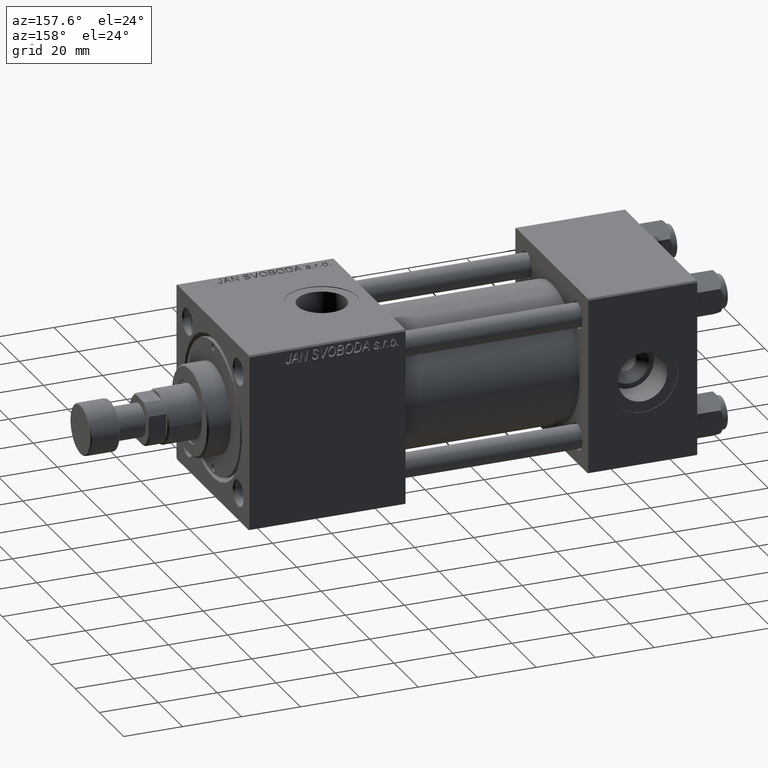
[diagram: clean part render]
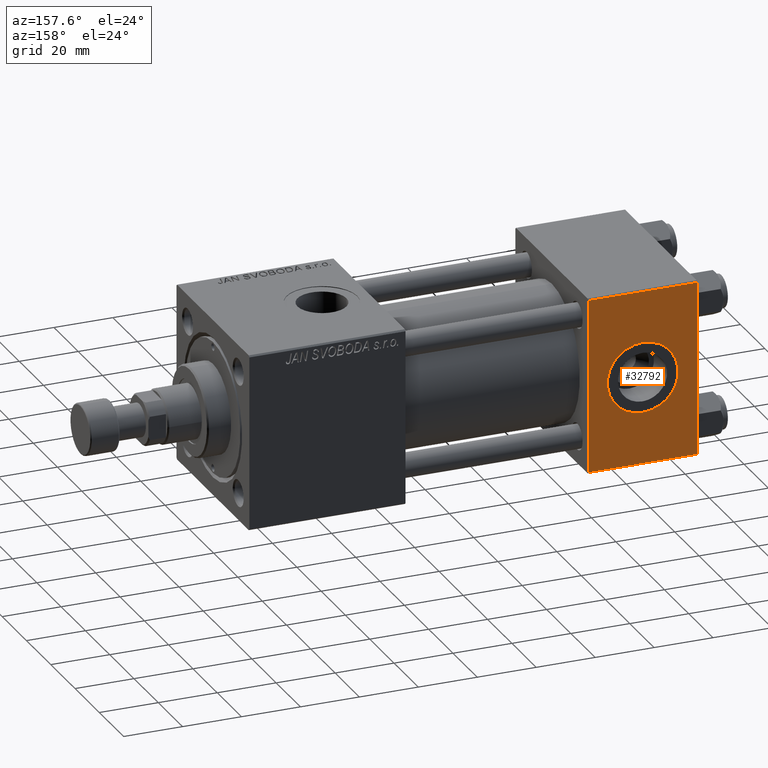
[diagram: same view with one face highlighted and labeled with its STEP entity id]
A machine part, auxiliary view. The second image highlights one B-rep face of the part: STEP entity #32792.
In plain terms, the highlighted planar face has unit normal (0, 1, 0).
Its self-contained STEP definition (entity closure, byte-faithful):
#167 = CARTESIAN_POINT ( 'NONE',  ( 37.00000000000000000, 29.99999999999999289, 30.00000000000000000 ) ) ;
#1000 = VERTEX_POINT ( 'NONE', #25185 ) ;
#2087 = VECTOR ( 'NONE', #15923, 1000.000000000000000 ) ;
#2993 = VECTOR ( 'NONE', #18116, 1000.000000000000000 ) ;
#3806 = EDGE_CURVE ( 'NONE', #12019, #48899, #44495, .T. ) ;
#6237 = ORIENTED_EDGE ( 'NONE', *, *, #3806, .T. ) ;
#6300 = VERTEX_POINT ( 'NONE', #7524 ) ;
#6732 = DIRECTION ( 'NONE',  ( 0.000000000000000000, 0.000000000000000000, 1.000000000000000000 ) ) ;
#6758 = AXIS2_PLACEMENT_3D ( 'NONE', #47583, #35287, #6732 ) ;
#7233 = CARTESIAN_POINT ( 'NONE',  ( 37.00000000000000000, 29.99999999999999289, -29.50000000000000000 ) ) ;
#7524 = CARTESIAN_POINT ( 'NONE',  ( 18.50000000000000000, 29.99999999999999289, -12.00000000000000178 ) ) ;
#10932 = DIRECTION ( 'NONE',  ( 0.000000000000000000, 0.000000000000000000, 1.000000000000000000 ) ) ;
#11026 = CIRCLE ( 'NONE', #6758, 12.00000000000000178 ) ;
#12019 = VERTEX_POINT ( 'NONE', #29528 ) ;
#12794 = EDGE_CURVE ( 'NONE', #48899, #31919, #43294, .T. ) ;
#14123 = LINE ( 'NONE', #30405, #2993 ) ;
#14183 = EDGE_CURVE ( 'NONE', #44410, #31919, #27194, .T. ) ;
#14904 = EDGE_LOOP ( 'NONE', ( #37479, #26314 ) ) ;
#15923 = DIRECTION ( 'NONE',  ( 0.000000000000000000, 0.000000000000000000, -1.000000000000000000 ) ) ;
#18116 = DIRECTION ( 'NONE',  ( 1.000000000000000000, 0.000000000000000000, 0.000000000000000000 ) ) ;
#19336 = ORIENTED_EDGE ( 'NONE', *, *, #33777, .T. ) ;
#19458 = CARTESIAN_POINT ( 'NONE',  ( 0.000000000000000000, 29.99999999999999289, 29.50000000000000000 ) ) ;
#19649 = EDGE_CURVE ( 'NONE', #6300, #1000, #38964, .T. ) ;
#19679 = DIRECTION ( 'NONE',  ( -0.000000000000000000, 1.000000000000000000, 0.000000000000000000 ) ) ;
#20940 = ORIENTED_EDGE ( 'NONE', *, *, #12794, .T. ) ;
#23172 = CARTESIAN_POINT ( 'NONE',  ( 37.00000000000000000, 29.99999999999999289, 30.00000000000000000 ) ) ;
#23448 = DIRECTION ( 'NONE',  ( 0.000000000000000000, 0.000000000000000000, -1.000000000000000000 ) ) ;
#23476 = DIRECTION ( 'NONE',  ( 0.000000000000000000, 1.000000000000000000, 0.000000000000000000 ) ) ;
#25185 = CARTESIAN_POINT ( 'NONE',  ( 18.50000000000000000, 29.99999999999999289, 12.00000000000000178 ) ) ;
#25318 = EDGE_CURVE ( 'NONE', #1000, #6300, #11026, .T. ) ;
#26314 = ORIENTED_EDGE ( 'NONE', *, *, #19649, .F. ) ;
#27194 = LINE ( 'NONE', #51485, #34499 ) ;
#27716 = PLANE ( 'NONE',  #51228 ) ;
#29528 = CARTESIAN_POINT ( 'NONE',  ( 37.00000000000000000, 29.99999999999999289, 29.50000000000000000 ) ) ;
#30405 = CARTESIAN_POINT ( 'NONE',  ( 37.00000000000000000, 29.99999999999999289, 29.50000000000000000 ) ) ;
#31919 = VERTEX_POINT ( 'NONE', #41141 ) ;
#32792 = ADVANCED_FACE ( 'NONE', ( #47747, #39210 ), #27716, .T. ) ;
#33355 = EDGE_LOOP ( 'NONE', ( #6237, #20940, #43156, #19336 ) ) ;
#33777 = EDGE_CURVE ( 'NONE', #44410, #12019, #14123, .T. ) ;
#34499 = VECTOR ( 'NONE', #23448, 1000.000000000000000 ) ;
#35287 = DIRECTION ( 'NONE',  ( 0.000000000000000000, 1.000000000000000000, 0.000000000000000000 ) ) ;
#35522 = DIRECTION ( 'NONE',  ( -1.000000000000000000, 0.000000000000000000, 0.000000000000000000 ) ) ;
#37479 = ORIENTED_EDGE ( 'NONE', *, *, #25318, .F. ) ;
#38964 = CIRCLE ( 'NONE', #50037, 12.00000000000000178 ) ;
#39210 = FACE_OUTER_BOUND ( 'NONE', #33355, .T. ) ;
#40253 = DIRECTION ( 'NONE',  ( 0.000000000000000000, -0.000000000000000000, 1.000000000000000000 ) ) ;
#41141 = CARTESIAN_POINT ( 'NONE',  ( 0.000000000000000000, 29.99999999999999289, -29.50000000000000000 ) ) ;
#42654 = CARTESIAN_POINT ( 'NONE',  ( 37.00000000000000000, 29.99999999999999289, -29.50000000000000000 ) ) ;
#43156 = ORIENTED_EDGE ( 'NONE', *, *, #14183, .F. ) ;
#43263 = CARTESIAN_POINT ( 'NONE',  ( 18.50000000000000000, 29.99999999999999289, 0.000000000000000000 ) ) ;
#43294 = LINE ( 'NONE', #7233, #48198 ) ;
#44410 = VERTEX_POINT ( 'NONE', #19458 ) ;
#44495 = LINE ( 'NONE', #167, #2087 ) ;
#47583 = CARTESIAN_POINT ( 'NONE',  ( 18.50000000000000000, 29.99999999999999289, 0.000000000000000000 ) ) ;
#47747 = FACE_BOUND ( 'NONE', #14904, .T. ) ;
#48198 = VECTOR ( 'NONE', #35522, 1000.000000000000000 ) ;
#48899 = VERTEX_POINT ( 'NONE', #42654 ) ;
#50037 = AXIS2_PLACEMENT_3D ( 'NONE', #43263, #23476, #10932 ) ;
#51228 = AXIS2_PLACEMENT_3D ( 'NONE', #23172, #19679, #40253 ) ;
#51485 = CARTESIAN_POINT ( 'NONE',  ( 0.000000000000000000, 29.99999999999999289, 30.00000000000000000 ) ) ;